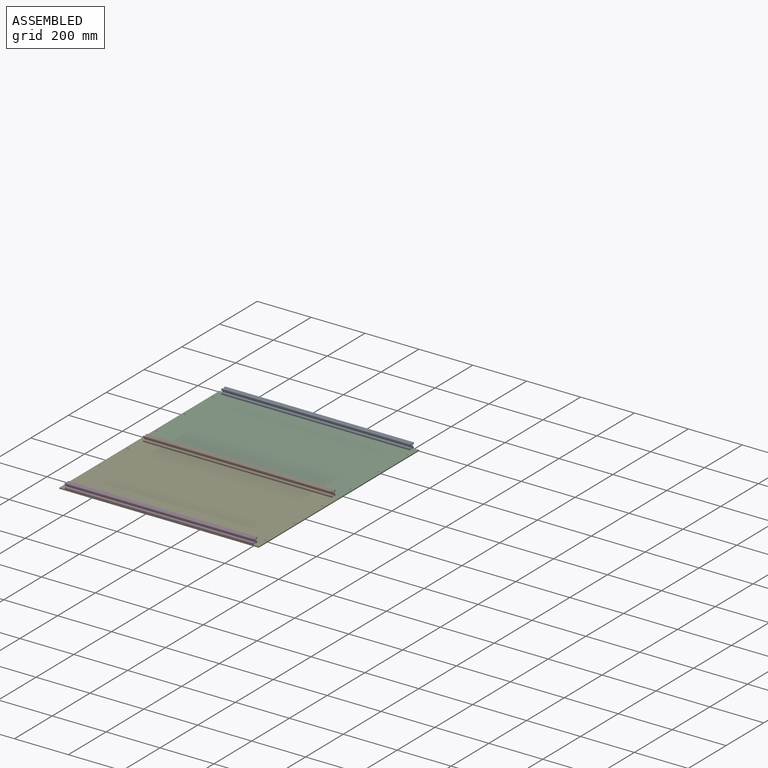
[diagram: assembled view]
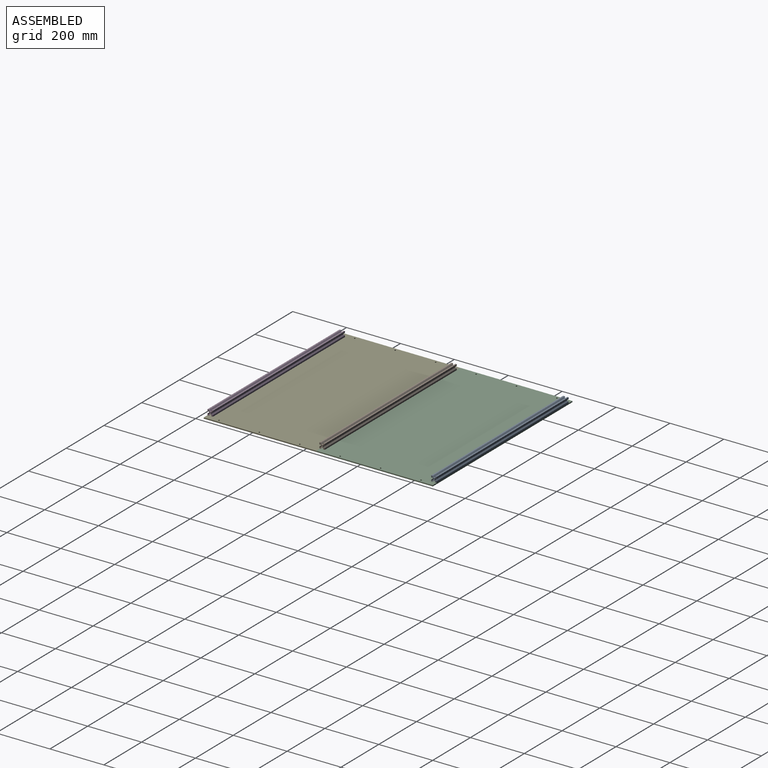
[diagram: assembled view, second angle]
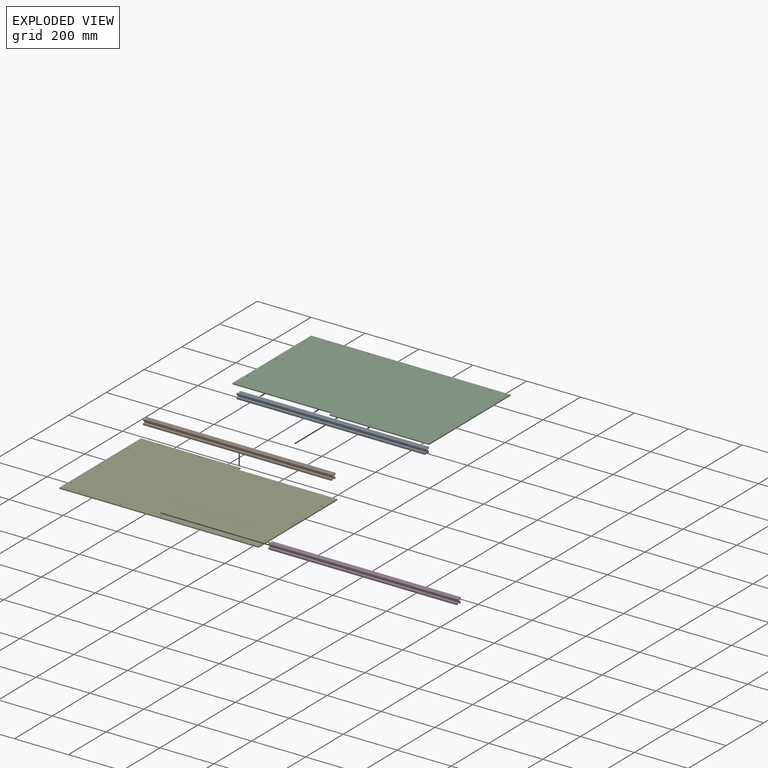
[diagram: exploded view]
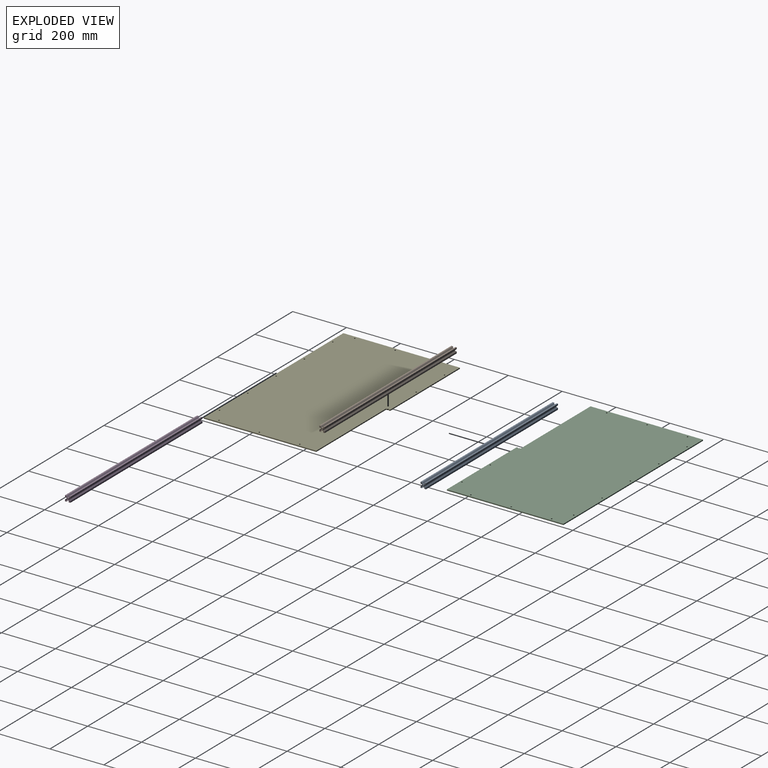
[diagram: exploded view, second angle]
ASSEMBLY  parts=5 mates=2
PART A: 39 faces, bbox 20x20x700 mm
  f0: plane 700x1.8mm, normal (-0.71,-0.71,0), area 1781.9mm2, adj f1,f35,f37,f38
  f1: plane 700x3.66mm, normal (1,0,0), area 2558.8mm2, adj f0,f2,f37,f38
  f2: plane 700x4.2mm, normal (-0.71,-0.71,0), area 4157.8mm2, adj f1,f3,f37,f38
  f3: plane 700x4.59mm, normal (-1,0,0), area 3213.7mm2, adj f2,f4,f37,f38
  f4: plane 700x4.2mm, normal (-0.71,0.71,0), area 4157.8mm2, adj f3,f5,f37,f38
  f5: plane 700x3.66mm, normal (1,0,0), area 2558.8mm2, adj f4,f6,f37,f38
  f6: plane 700x1.8mm, normal (-0.71,0.71,0), area 1781.9mm2, adj f5,f7,f37,f38
  f7: plane 700x5.36mm, normal (-1,0,0), area 3752mm2, adj f6,f8,f37,f38
  f8: plane 700x5.36mm, normal (0,-1,0), area 3752mm2, adj f7,f9,f37,f38
  f9: plane 700x1.8mm, normal (0.71,-0.71,0), area 1781.9mm2, adj f8,f10,f37,f38
  f10: plane 700x3.66mm, normal (0,1,0), area 2558.8mm2, adj f9,f11,f37,f38
  f11: plane 700x4.2mm, normal (0.71,-0.71,0), area 4157.8mm2, adj f10,f12,f37,f38
  f12: plane 700x4.59mm, normal (0,-1,0), area 3213.7mm2, adj f11,f13,f37,f38
  f13: plane 700x4.2mm, normal (-0.71,-0.71,0), area 4157.8mm2, adj f12,f14,f37,f38
  f14: plane 700x3.66mm, normal (0,1,0), area 2558.8mm2, adj f13,f15,f37,f38
  f15: plane 700x1.8mm, normal (-0.71,-0.71,0), area 1781.9mm2, adj f14,f16,f37,f38
  f16: plane 700x5.36mm, normal (0,-1,0), area 3752mm2, adj f15,f17,f37,f38
  f17: plane 700x5.36mm, normal (1,0,0), area 3752mm2, adj f16,f18,f37,f38
  f18: plane 700x1.8mm, normal (0.71,0.71,0), area 1781.9mm2, adj f17,f19,f37,f38
  f19: plane 700x3.66mm, normal (-1,0,0), area 2558.8mm2, adj f18,f20,f37,f38
  f20: plane 700x4.2mm, normal (0.71,0.71,0), area 4157.8mm2, adj f19,f21,f37,f38
  f21: plane 700x4.59mm, normal (1,0,0), area 3213.7mm2, adj f20,f22,f37,f38
  f22: plane 700x4.2mm, normal (0.71,-0.71,0), area 4157.8mm2, adj f21,f23,f37,f38
  f23: plane 700x3.66mm, normal (-1,0,0), area 2558.8mm2, adj f22,f24,f37,f38
  f24: plane 700x1.8mm, normal (0.71,-0.71,0), area 1781.9mm2, adj f23,f25,f37,f38
  f25: plane 700x5.36mm, normal (1,0,0), area 3752mm2, adj f24,f26,f37,f38
  f26: plane 700x5.36mm, normal (0,1,0), area 3752mm2, adj f25,f27,f37,f38
  f27: plane 700x1.8mm, normal (-0.71,0.71,0), area 1781.9mm2, adj f26,f28,f37,f38
  f28: plane 700x3.66mm, normal (0,-1,0), area 2558.8mm2, adj f27,f29,f37,f38
  f29: plane 700x4.2mm, normal (-0.71,0.71,0), area 4157.8mm2, adj f28,f30,f37,f38
  f30: plane 700x4.59mm, normal (0,1,0), area 3213.7mm2, adj f29,f31,f37,f38
  f31: plane 700x4.2mm, normal (0.71,0.71,0), area 4157.8mm2, adj f30,f32,f37,f38
  f32: plane 700x3.66mm, normal (0,-1,0), area 2558.8mm2, adj f31,f33,f37,f38
  f33: plane 700x1.8mm, normal (0.71,0.71,0), area 1781.9mm2, adj f32,f34,f37,f38
  f34: plane 700x5.36mm, normal (0,1,0), area 3752mm2, adj f33,f35,f37,f38
  f35: plane 700x5.36mm, normal (-1,0,0), area 3752mm2, adj f0,f34,f37,f38
  f36: cylinder r=2.1mm len=700mm, axis (0,0,-1), area 9236.3mm2, adj f37,f38
  f37: plane 20x20mm, normal (0,0,1), area 184.6mm2, adj f0,f1,f2,f3,f4,f5,f6,f7
  f38: plane 20x20mm, normal (0,0,-1), area 184.6mm2, adj f0,f1,f2,f3,f4,f5,f6,f7
PART B: same geometry as A
PART C: 23 faces, bbox 740x432.5x4 mm
  f0: cylinder r=2.75mm len=5.5mm, axis (0,0,-1), area 34.6mm2, adj f1,f20,f21,f22
  f1: plane 4.75x4mm, normal (-1,0,0), area 19mm2, adj f0,f2,f21,f22
  f2: plane 370x4mm, normal (0,-1,0), area 1480mm2, adj f1,f3,f21,f22
  f3: plane 432.5x4mm, normal (1,0,0), area 1730mm2, adj f2,f4,f21,f22
  f4: plane 740x4mm, normal (0,1,0), area 2960mm2, adj f3,f5,f21,f22
  f5: plane 417.5x4mm, normal (-1,0,0), area 1670mm2, adj f4,f6,f21,f22
  f6: plane 370x4mm, normal (0,-1,0), area 1480mm2, adj f5,f20,f21,f22
  f7: cylinder r=2.75mm len=5.5mm, axis (0,0,-1), area 69.1mm2, adj f21,f22
  f8: cylinder r=2.75mm len=5.5mm, axis (0,0,-1), area 69.1mm2, adj f21,f22
  f9: cylinder r=2.75mm len=5.5mm, axis (0,0,-1), area 69.1mm2, adj f21,f22
  f10: cylinder r=2.75mm len=5.5mm, axis (0,0,-1), area 69.1mm2, adj f21,f22
  f11: cylinder r=2.75mm len=5.5mm, axis (0,0,-1), area 69.1mm2, adj f21,f22
  f12: cylinder r=2.75mm len=5.5mm, axis (0,0,-1), area 69.1mm2, adj f21,f22
  f13: cylinder r=2.75mm len=5.5mm, axis (0,0,-1), area 69.1mm2, adj f21,f22
  f14: cylinder r=2.75mm len=5.5mm, axis (0,0,-1), area 69.1mm2, adj f21,f22
  f15: cylinder r=2.75mm len=5.5mm, axis (0,0,-1), area 69.1mm2, adj f21,f22
  f16: cylinder r=2.75mm len=5.5mm, axis (0,0,-1), area 69.1mm2, adj f21,f22
  f17: cylinder r=2.75mm len=5.5mm, axis (0,0,-1), area 69.1mm2, adj f21,f22
  f18: cylinder r=2.75mm len=5.5mm, axis (0,0,-1), area 69.1mm2, adj f21,f22
  f19: cylinder r=2.75mm len=5.5mm, axis (0,0,-1), area 69.1mm2, adj f21,f22
  f20: plane 4.75x4mm, normal (-1,0,0), area 19mm2, adj f0,f6,f21,f22
  f21: plane 740x432.5mm, normal (0,0,1), area 314179.3mm2, adj f0,f1,f2,f3,f4,f5,f6,f7
  f22: plane 740x432.5mm, normal (0,0,-1), area 314179.3mm2, adj f0,f1,f2,f3,f4,f5,f6,f7
PART D: same geometry as A
PART E: 23 faces, bbox 740x432.5x4 mm
  f0: plane 4.75x4mm, normal (1,0,0), area 19mm2, adj f1,f19,f21,f22
  f1: cylinder r=2.75mm len=5.5mm, axis (0,0,-1), area 34.6mm2, adj f0,f2,f21,f22
  f2: plane 4.75x4mm, normal (1,0,0), area 19mm2, adj f1,f3,f21,f22
  f3: plane 370x4mm, normal (0,1,0), area 1480mm2, adj f2,f4,f21,f22
  f4: plane 432.5x4mm, normal (-1,0,0), area 1730mm2, adj f3,f5,f21,f22
  f5: plane 740x4mm, normal (0,-1,0), area 2960mm2, adj f4,f6,f21,f22
  f6: plane 417.5x4mm, normal (1,0,0), area 1670mm2, adj f5,f19,f21,f22
  f7: cylinder r=2.75mm len=5.5mm, axis (0,0,-1), area 69.1mm2, adj f21,f22
  f8: cylinder r=2.75mm len=5.5mm, axis (0,0,-1), area 69.1mm2, adj f21,f22
  f9: cylinder r=2.75mm len=5.5mm, axis (0,0,-1), area 69.1mm2, adj f21,f22
  f10: cylinder r=2.75mm len=5.5mm, axis (0,0,-1), area 69.1mm2, adj f21,f22
  f11: cylinder r=2.75mm len=5.5mm, axis (0,0,-1), area 69.1mm2, adj f21,f22
  f12: cylinder r=2.75mm len=5.5mm, axis (0,0,-1), area 69.1mm2, adj f21,f22
  f13: cylinder r=2.75mm len=5.5mm, axis (0,0,-1), area 69.1mm2, adj f21,f22
  f14: cylinder r=2.75mm len=5.5mm, axis (0,0,-1), area 69.1mm2, adj f21,f22
  f15: cylinder r=2.75mm len=5.5mm, axis (0,0,-1), area 69.1mm2, adj f21,f22
  f16: cylinder r=2.75mm len=5.5mm, axis (0,0,-1), area 69.1mm2, adj f21,f22
  f17: cylinder r=2.75mm len=5.5mm, axis (0,0,-1), area 69.1mm2, adj f21,f22
  f18: cylinder r=2.75mm len=5.5mm, axis (0,0,-1), area 69.1mm2, adj f21,f22
  f19: plane 370x4mm, normal (0,1,0), area 1480mm2, adj f0,f6,f21,f22
  f20: cylinder r=2.75mm len=5.5mm, axis (0,0,-1), area 69.1mm2, adj f21,f22
  f21: plane 740x432.5mm, normal (0,0,1), area 314179.3mm2, adj f0,f1,f2,f3,f4,f5,f6,f7
  f22: plane 740x432.5mm, normal (0,0,-1), area 314179.3mm2, adj f0,f1,f2,f3,f4,f5,f6,f7
PLACE A rot(axis=(0,1,0),90deg) t=(-351.58,408.29,70.62)mm
PLACE B rot(axis=(0,1,0),90deg) t=(-351.58,-6.71,70.62)mm
PLACE C t=(-1.58,-6.71,6.62)mm
PLACE D rot(axis=(0,1,0),90deg) t=(-351.58,-421.71,70.62)mm
PLACE E t=(-1.58,-6.71,6.62)mm
MATE fastened C.f2 <-> E.f19  axis (0,-1,0) through (368.42,-14.21,10.62)mm
MATE fastened B.f17 <-> E.f21  axis (0,0,-1) through (348.42,-16.71,10.62)mm
